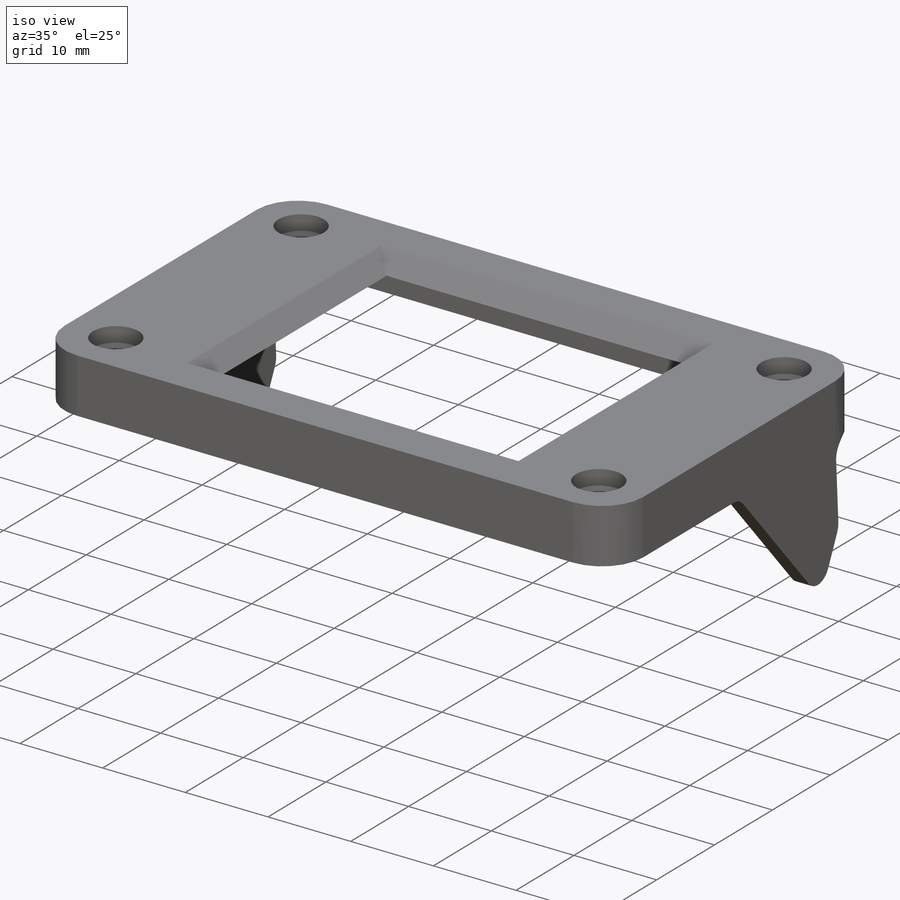
[diagram: iso view]
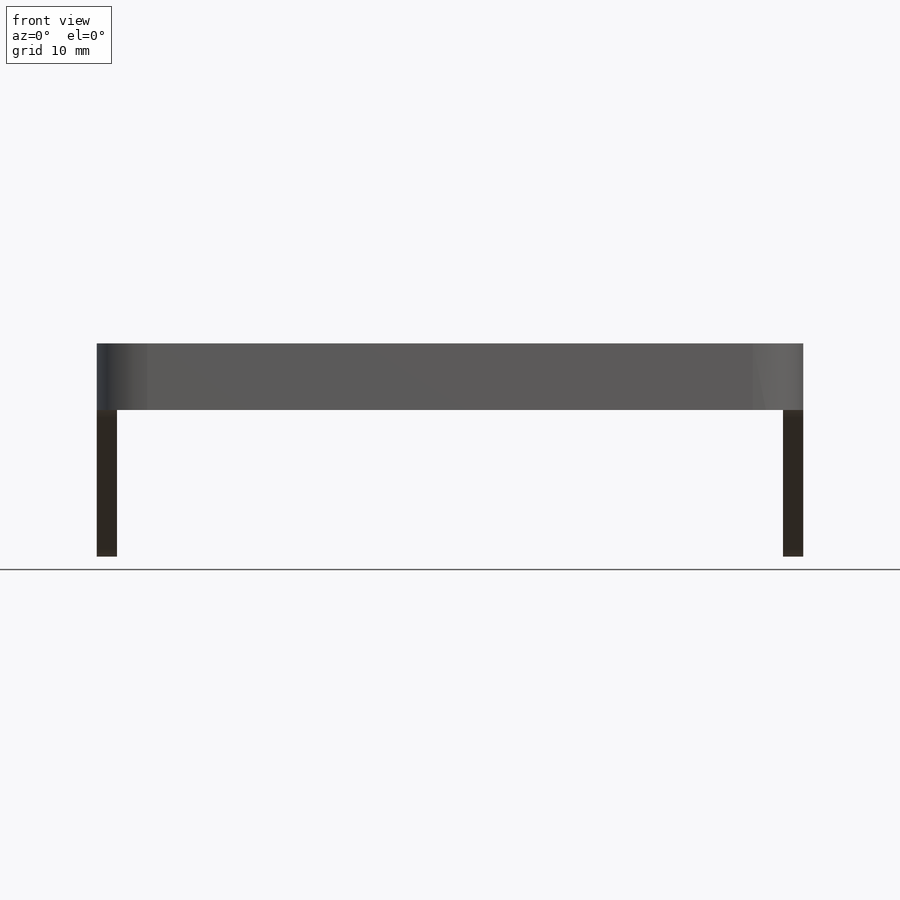
[diagram: front view]
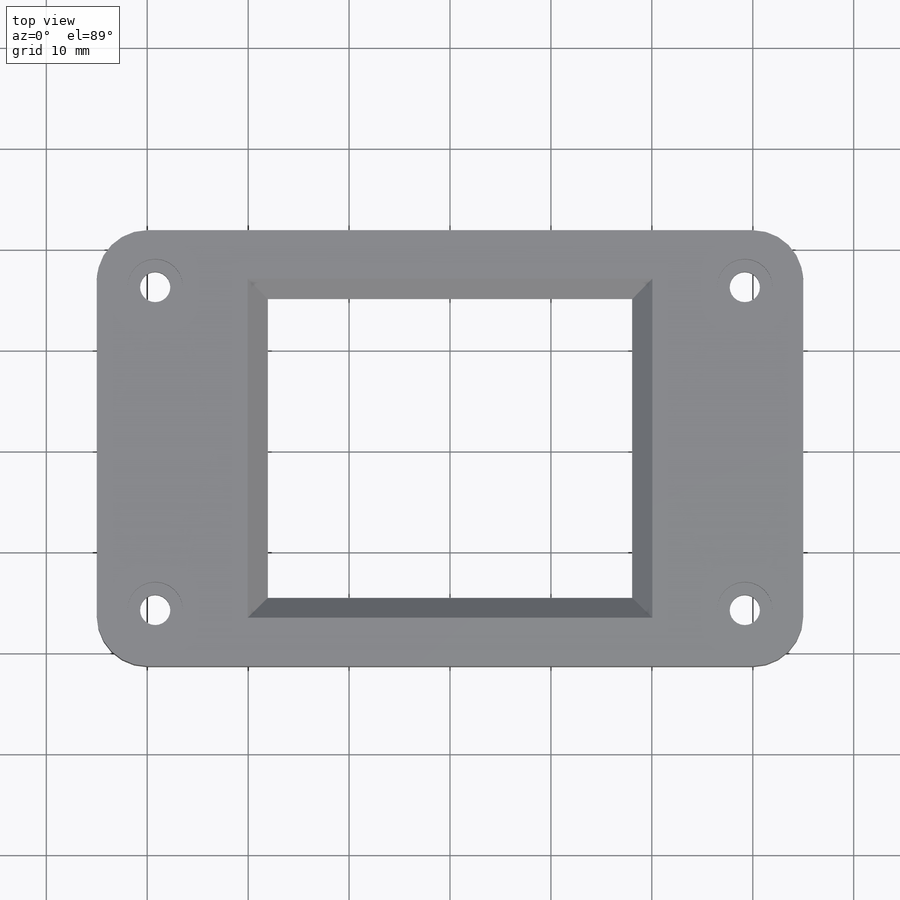
[diagram: top view]
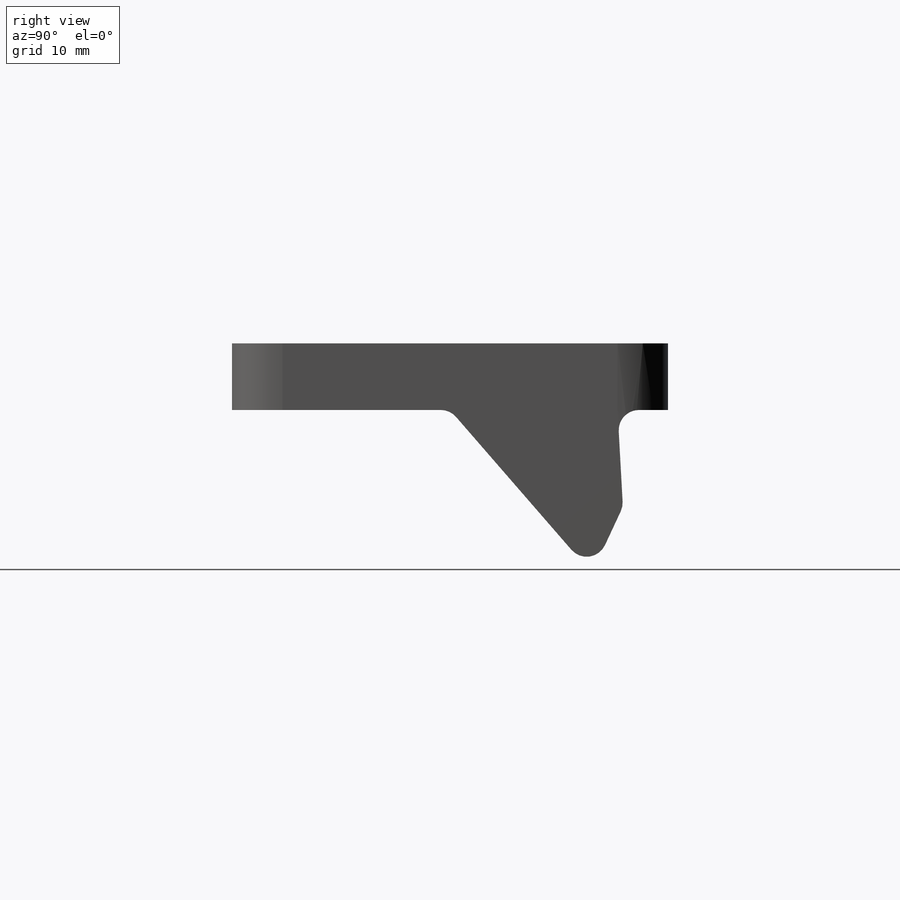
[diagram: right view]
SOLIDWORKS PART (.sldprt)
format: sldprt  version: not decoded by parser v0  size: 472,576 bytes
history: native  units: mm
features: sketch x9, cut_extrude x5, extrude x4, fillet x2, material x1, shell x1, chamfer x1 (+11 scaffold rows collapsed)
feature tree (34):
  scaffold x11  (default folders/planes/origin — collapsed)
  material  "Material <not specified>"
  sketch  "Sketch2"  dims[c1.D7=3.0mm c1.D1=66.0mm c1.D2=39.2mm c1.D3=27.7mm c1.D4=27.7mm c1.D5=14.425mm c1.D6=14.425mm c2.D3=2.0mm c2.D4=2.0mm c2.D5=2.0mm c2.D6=2.0mm]
  extrude  "Boss-Extrude3"  Depth=6.6mm
  fillet  "Fillet2"  Radius=5mm
  sketch  "Sketch3"  dims[c1.D5=3.0mm c1.D6=3.0mm c1.D7=3.0mm c1.D8=3.0mm c1.D9=31.85mm c1.D1=58.42mm c1.D2=32.004mm c1.D3=5.598mm c1.D4=5.598mm c2.D9=5.79mm c2.D10=5.79mm c2.D1=4.175mm c2.D2=4.175mm c2.D3=4.3mm c2.D4=4.3mm]
  cut_extrude  "Cut-Extrude1"  [1 undecoded]
  shell  "Shell1"  Thickness=2mm
  sketch  "Sketch7"  dims[D1=36.1mm D2=29.6mm D3=29.6mm]
  cut_extrude  "Cut-Extrude2"  [1 undecoded]
  sketch  "Sketch8"
  cut_extrude  "Cut-Extrude3"  Depth=1.6mm
  chamfer  "Chamfer2"  Distance=2mm Angle=45deg
  sketch  "Sketch11"  dims[c1.D1=6.6mm c1.D2=33.2mm c2.D2=65.0deg]
  sketch  "Sketch13"  dims[c1.D1=16.6mm c2.D1=~115.10195deg c2.D2=0.0mm c3.D1=16.6mm c4.D1=65.0deg]
  extrude  "Boss-Extrude6"  Depth=2mm
  extrude  "Boss-Extrude7"  Depth=2mm
  fillet  "Fillet7"  Radius=2mm
  sketch  "Sketch14"  dims[D3=3.0mm D1=2.0mm D2=2.0mm]
  cut_extrude  "Cut-Extrude4"  Depth=4.6mm
  sketch  "Sketch15"  dims[c1.D1=7.0mm c1.D2=7.0mm c1.D3=7.0mm c1.D4=7.0mm c1.D5=1.5mm c1.D6=1.5mm c1.D7=1.5mm c1.D8=3.0mm c1.D9=3.0mm c1.D10=3.0mm c1.D11=3.0mm c1.D12=1.5mm c2.D9=6.0mm]
  extrude  "Boss-Extrude9"  Depth=3mm
  sketch  "Sketch16"  dims[D1=5.5mm D2=5.5mm D3=5.5mm D4=5.5mm]
  cut_extrude  "Cut-Extrude5"  Depth=1.8mm
decode coverage: 19 of 22 modeling features carry decoded parameters
note: ~ marks probable driven/reference dimensions
note: 2 parameter values undecoded
note: suppression state not decoded; provenance and decode notes live in map.json
